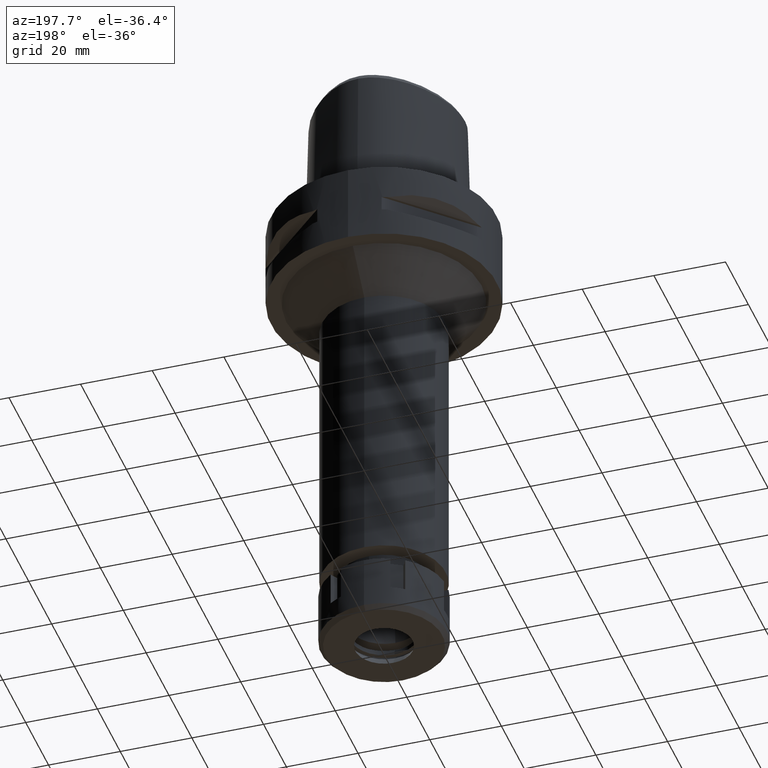
[diagram: clean part render]
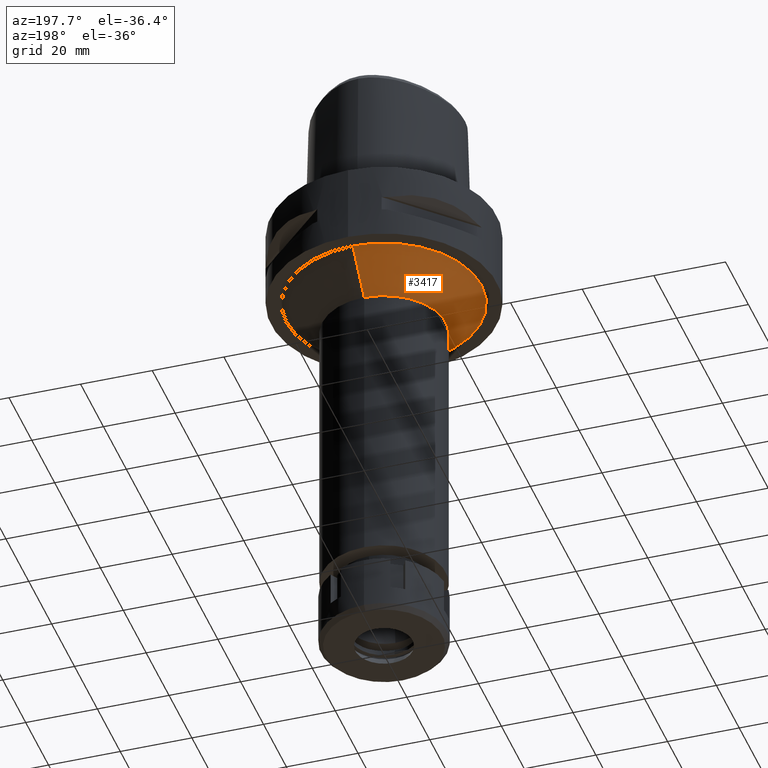
[diagram: same view with one face highlighted and labeled with its STEP entity id]
A machine part, auxiliary view. The second image highlights one B-rep face of the part: STEP entity #3417.
In plain terms, the highlighted conical surface has half-angle 45 deg.
Its self-contained STEP definition (entity closure, byte-faithful):
#216 = ORIENTED_EDGE ( 'NONE', *, *, #4274, .F. ) ;
#240 = AXIS2_PLACEMENT_3D ( 'NONE', #2470, #2919, #4556 ) ;
#755 = VERTEX_POINT ( 'NONE', #3999 ) ;
#758 = CARTESIAN_POINT ( 'NONE',  ( 0.0000000000000000000, 17.25000000000000000, -32.00000000000000000 ) ) ;
#878 = CONICAL_SURFACE ( 'NONE', #240, 22.25000000000000000, 0.7853981633972997312 ) ;
#1057 = CIRCLE ( 'NONE', #1243, 17.25000000000000000 ) ;
#1141 = DIRECTION ( 'NONE',  ( 0.0000000000000000000, -1.000000000000000000, 0.0000000000000000000 ) ) ;
#1219 = ORIENTED_EDGE ( 'NONE', *, *, #4075, .F. ) ;
#1243 = AXIS2_PLACEMENT_3D ( 'NONE', #3530, #5272, #3139 ) ;
#1297 = CARTESIAN_POINT ( 'NONE',  ( 0.0000000000000000000, 27.25000000000000000, -22.00000000000000000 ) ) ;
#1695 = VECTOR ( 'NONE', #2944, 1000.000000000000114 ) ;
#1870 = ORIENTED_EDGE ( 'NONE', *, *, #3974, .T. ) ;
#2465 = DIRECTION ( 'NONE',  ( 0.0000000000000000000, 0.7071067811865474617, -0.7071067811865474617 ) ) ;
#2470 = CARTESIAN_POINT ( 'NONE',  ( 0.0000000000000000000, 0.0000000000000000000, -27.00000000000000000 ) ) ;
#2481 = CARTESIAN_POINT ( 'NONE',  ( 0.0000000000000000000, 0.0000000000000000000, -22.00000000000000000 ) ) ;
#2576 = VERTEX_POINT ( 'NONE', #2754 ) ;
#2754 = CARTESIAN_POINT ( 'NONE',  ( 0.0000000000000000000, -17.25000000000000000, -32.00000000000000000 ) ) ;
#2915 = LINE ( 'NONE', #3732, #4575 ) ;
#2919 = DIRECTION ( 'NONE',  ( 0.0000000000000000000, 0.0000000000000000000, 1.000000000000000000 ) ) ;
#2940 = VERTEX_POINT ( 'NONE', #758 ) ;
#2944 = DIRECTION ( 'NONE',  ( 0.0000000000000000000, -0.7071067811865474617, -0.7071067811865474617 ) ) ;
#2982 = CARTESIAN_POINT ( 'NONE',  ( 0.0000000000000000000, -27.25000000000000000, -22.00000000000000000 ) ) ;
#3139 = DIRECTION ( 'NONE',  ( 0.0000000000000000000, -1.000000000000000000, 0.0000000000000000000 ) ) ;
#3306 = FACE_OUTER_BOUND ( 'NONE', #4260, .T. ) ;
#3417 = ADVANCED_FACE ( 'NONE', ( #3306 ), #878, .T. ) ;
#3511 = AXIS2_PLACEMENT_3D ( 'NONE', #2481, #4685, #1141 ) ;
#3530 = CARTESIAN_POINT ( 'NONE',  ( 0.0000000000000000000, 0.0000000000000000000, -32.00000000000000000 ) ) ;
#3561 = EDGE_CURVE ( 'NONE', #5361, #755, #4571, .T. ) ;
#3732 = CARTESIAN_POINT ( 'NONE',  ( 0.0000000000000000000, -27.25000000000000000, -22.00000000000000000 ) ) ;
#3974 = EDGE_CURVE ( 'NONE', #755, #2940, #5546, .T. ) ;
#3999 = CARTESIAN_POINT ( 'NONE',  ( 0.0000000000000000000, 27.25000000000000000, -22.00000000000000000 ) ) ;
#4075 = EDGE_CURVE ( 'NONE', #2576, #2940, #1057, .T. ) ;
#4260 = EDGE_LOOP ( 'NONE', ( #1219, #216, #5261, #1870 ) ) ;
#4274 = EDGE_CURVE ( 'NONE', #5361, #2576, #2915, .T. ) ;
#4556 = DIRECTION ( 'NONE',  ( 0.0000000000000000000, 1.000000000000000000, 0.0000000000000000000 ) ) ;
#4571 = CIRCLE ( 'NONE', #3511, 27.25000000000000000 ) ;
#4575 = VECTOR ( 'NONE', #2465, 1000.000000000000114 ) ;
#4685 = DIRECTION ( 'NONE',  ( 0.0000000000000000000, 0.0000000000000000000, -1.000000000000000000 ) ) ;
#5261 = ORIENTED_EDGE ( 'NONE', *, *, #3561, .T. ) ;
#5272 = DIRECTION ( 'NONE',  ( 0.0000000000000000000, 0.0000000000000000000, -1.000000000000000000 ) ) ;
#5361 = VERTEX_POINT ( 'NONE', #2982 ) ;
#5546 = LINE ( 'NONE', #1297, #1695 ) ;